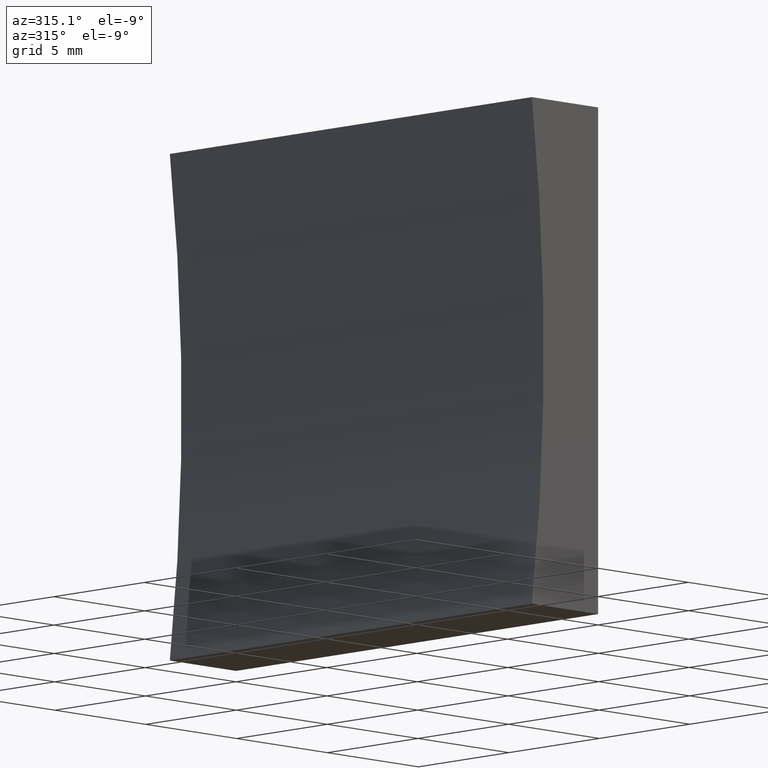
[diagram: clean part render]
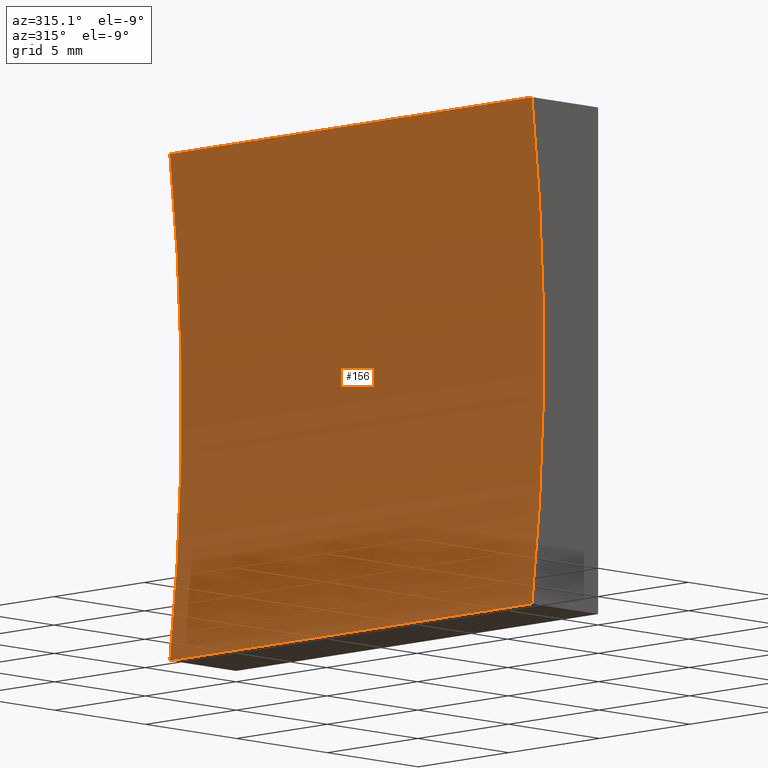
[diagram: same view with one face highlighted and labeled with its STEP entity id]
A machine part, auxiliary view. The second image highlights one B-rep face of the part: STEP entity #156.
In plain terms, the highlighted cylindrical surface (partial cylindrical patch) has radius 77.55 mm, axis along (-0, -1, -0).
Its self-contained STEP definition (entity closure, byte-faithful):
#6 = DIRECTION ( 'NONE',  ( 0.0000000000000000000, 0.0000000000000000000, 1.000000000000000000 ) ) ;
#25 = DIRECTION ( 'NONE',  ( -0.0000000000000000000, -1.000000000000000000, -0.0000000000000000000 ) ) ;
#27 = DIRECTION ( 'NONE',  ( -0.0000000000000000000, -1.000000000000000000, -0.0000000000000000000 ) ) ;
#32 = CARTESIAN_POINT ( 'NONE',  ( -80.54999999999999700, 20.00000000000000000, 10.00000000000000900 ) ) ;
#33 = EDGE_CURVE ( 'NONE', #164, #81, #96, .T. ) ;
#34 = VECTOR ( 'NONE', #27, 1000.000000000000000 ) ;
#38 = VECTOR ( 'NONE', #40, 1000.000000000000000 ) ;
#39 = CARTESIAN_POINT ( 'NONE',  ( -3.647448026739705400, 20.00000000000000000, -3.469446951953614200E-015 ) ) ;
#40 = DIRECTION ( 'NONE',  ( -0.0000000000000000000, -1.000000000000000000, -0.0000000000000000000 ) ) ;
#42 = CIRCLE ( 'NONE', #154, 77.55000000000001100 ) ;
#43 = AXIS2_PLACEMENT_3D ( 'NONE', #54, #25, #107 ) ;
#45 = DIRECTION ( 'NONE',  ( -0.0000000000000000000, -1.000000000000000000, -0.0000000000000000000 ) ) ;
#47 = FACE_OUTER_BOUND ( 'NONE', #56, .T. ) ;
#53 = LINE ( 'NONE', #39, #38 ) ;
#54 = CARTESIAN_POINT ( 'NONE',  ( -80.54999999999999700, 0.0000000000000000000, 10.00000000000000900 ) ) ;
#56 = EDGE_LOOP ( 'NONE', ( #124, #134, #113, #188 ) ) ;
#57 = CARTESIAN_POINT ( 'NONE',  ( -3.647448026739704500, 20.00000000000000000, 20.00000000000000400 ) ) ;
#67 = VERTEX_POINT ( 'NONE', #86 ) ;
#81 = VERTEX_POINT ( 'NONE', #159 ) ;
#82 = DIRECTION ( 'NONE',  ( -0.0000000000000000000, -1.000000000000000000, -0.0000000000000000000 ) ) ;
#86 = CARTESIAN_POINT ( 'NONE',  ( -3.647448026739704500, 20.00000000000000000, 20.00000000000000400 ) ) ;
#88 = LINE ( 'NONE', #57, #34 ) ;
#96 = CIRCLE ( 'NONE', #43, 77.55000000000001100 ) ;
#107 = DIRECTION ( 'NONE',  ( 0.0000000000000000000, 0.0000000000000000000, 1.000000000000000000 ) ) ;
#113 = ORIENTED_EDGE ( 'NONE', *, *, #176, .F. ) ;
#118 = EDGE_CURVE ( 'NONE', #166, #164, #53, .T. ) ;
#124 = ORIENTED_EDGE ( 'NONE', *, *, #33, .T. ) ;
#134 = ORIENTED_EDGE ( 'NONE', *, *, #137, .F. ) ;
#137 = EDGE_CURVE ( 'NONE', #67, #81, #88, .T. ) ;
#142 = CARTESIAN_POINT ( 'NONE',  ( -80.54999999999999700, 20.00000000000000000, 10.00000000000000900 ) ) ;
#147 = CARTESIAN_POINT ( 'NONE',  ( -3.647448026739705400, 20.00000000000000000, -3.469446951953614200E-015 ) ) ;
#150 = AXIS2_PLACEMENT_3D ( 'NONE', #142, #45, #179 ) ;
#154 = AXIS2_PLACEMENT_3D ( 'NONE', #32, #82, #6 ) ;
#156 = ADVANCED_FACE ( 'NONE', ( #47 ), #189, .F. ) ;
#159 = CARTESIAN_POINT ( 'NONE',  ( -3.647448026739704500, 0.0000000000000000000, 20.00000000000000400 ) ) ;
#164 = VERTEX_POINT ( 'NONE', #170 ) ;
#166 = VERTEX_POINT ( 'NONE', #147 ) ;
#170 = CARTESIAN_POINT ( 'NONE',  ( -3.647448026739705400, 0.0000000000000000000, -3.469446951953614200E-015 ) ) ;
#176 = EDGE_CURVE ( 'NONE', #166, #67, #42, .T. ) ;
#179 = DIRECTION ( 'NONE',  ( 0.0000000000000000000, 0.0000000000000000000, -1.000000000000000000 ) ) ;
#188 = ORIENTED_EDGE ( 'NONE', *, *, #118, .T. ) ;
#189 = CYLINDRICAL_SURFACE ( 'NONE', #150, 77.55000000000001100 ) ;